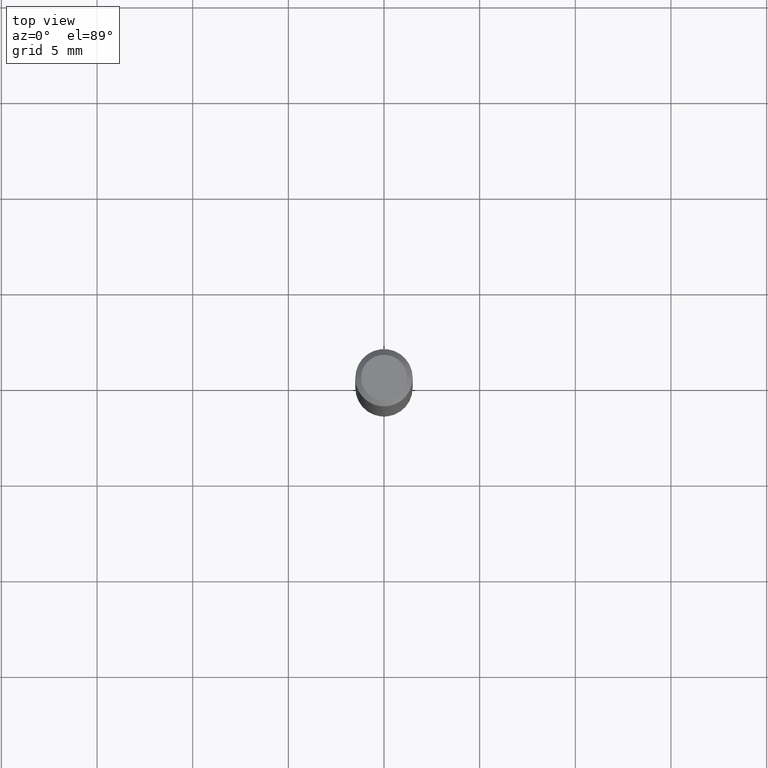
[diagram: clean part render]
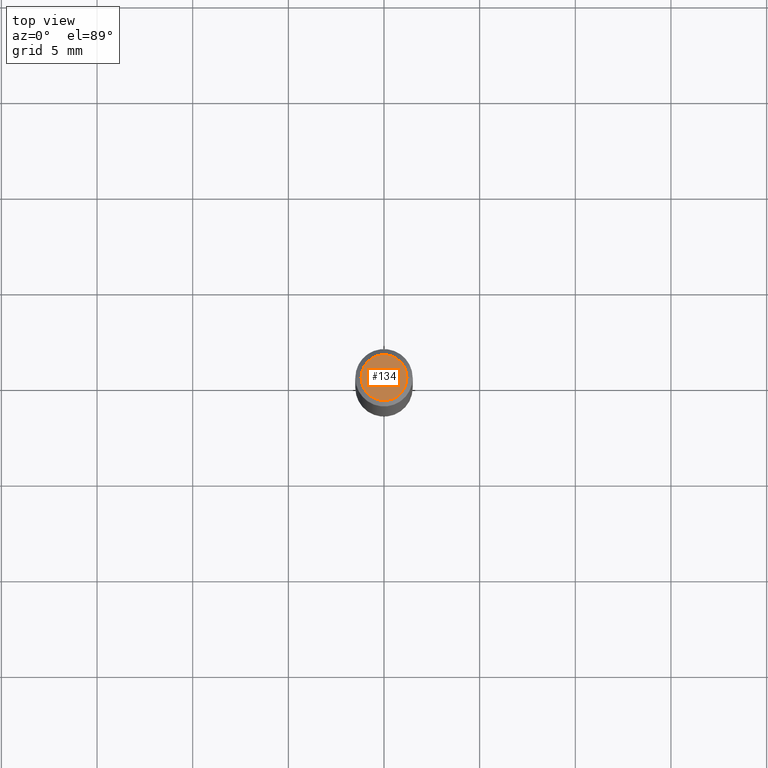
[diagram: same view with one face highlighted and labeled with its STEP entity id]
A machine part, top view. The second image highlights one B-rep face of the part: STEP entity #134.
In plain terms, the highlighted planar face has unit normal (0, -0, -1).
Its self-contained STEP definition (entity closure, byte-faithful):
#2 = DIRECTION ( 'NONE',  ( 2.438088387897960049E-29, -3.491481338843145188E-15, -1.000000000000000000 ) ) ;
#15 = VERTEX_POINT ( 'NONE', #404 ) ;
#35 = PLANE ( 'NONE',  #120 ) ;
#36 = CARTESIAN_POINT ( 'NONE',  ( 8.265746106709734507E-48, -1.180129479067563789E-33, -3.380025165646692144E-19 ) ) ;
#120 = AXIS2_PLACEMENT_3D ( 'NONE', #450, #2, #326 ) ;
#134 = ADVANCED_FACE ( 'NONE', ( #229 ), #35, .F. ) ;
#136 = DIRECTION ( 'NONE',  ( -2.445468806185136597E-29, 3.491481338843145583E-15, 1.000000000000000000 ) ) ;
#187 = AXIS2_PLACEMENT_3D ( 'NONE', #36, #367, #364 ) ;
#229 = FACE_OUTER_BOUND ( 'NONE', #472, .T. ) ;
#242 = EDGE_CURVE ( 'NONE', #15, #445, #384, .T. ) ;
#248 = DIRECTION ( 'NONE',  ( 1.000000000000000000, -6.982962677686266711E-15, 4.876185090822587894E-29 ) ) ;
#300 = EDGE_CURVE ( 'NONE', #445, #15, #329, .T. ) ;
#326 = DIRECTION ( 'NONE',  ( -1.000000000000000000, 6.982962677686265922E-15, -4.876176775795935793E-29 ) ) ;
#329 = CIRCLE ( 'NONE', #464, 0.04724000000000000421 ) ;
#351 = CARTESIAN_POINT ( 'NONE',  ( 8.265746106709734507E-48, -1.180129479067563789E-33, -3.380025165646692144E-19 ) ) ;
#364 = DIRECTION ( 'NONE',  ( 1.000000000000000000, -6.982962677686266711E-15, 4.876185090822587894E-29 ) ) ;
#367 = DIRECTION ( 'NONE',  ( -2.445468806185136597E-29, 3.491481338843145583E-15, 1.000000000000000000 ) ) ;
#368 = ORIENTED_EDGE ( 'NONE', *, *, #300, .T. ) ;
#384 = CIRCLE ( 'NONE', #187, 0.04724000000000000421 ) ;
#404 = CARTESIAN_POINT ( 'NONE',  ( 0.04724000000000000421, -3.852183633974369345E-16, -3.380025165621689721E-19 ) ) ;
#419 = CARTESIAN_POINT ( 'NONE',  ( -0.04724000000000000421, 3.504923541997677355E-16, -3.380025165670481712E-19 ) ) ;
#445 = VERTEX_POINT ( 'NONE', #419 ) ;
#450 = CARTESIAN_POINT ( 'NONE',  ( 4.132873053354867254E-48, -5.900647395337818946E-34, -1.690012582823346072E-19 ) ) ;
#464 = AXIS2_PLACEMENT_3D ( 'NONE', #351, #136, #248 ) ;
#468 = ORIENTED_EDGE ( 'NONE', *, *, #242, .T. ) ;
#472 = EDGE_LOOP ( 'NONE', ( #368, #468 ) ) ;